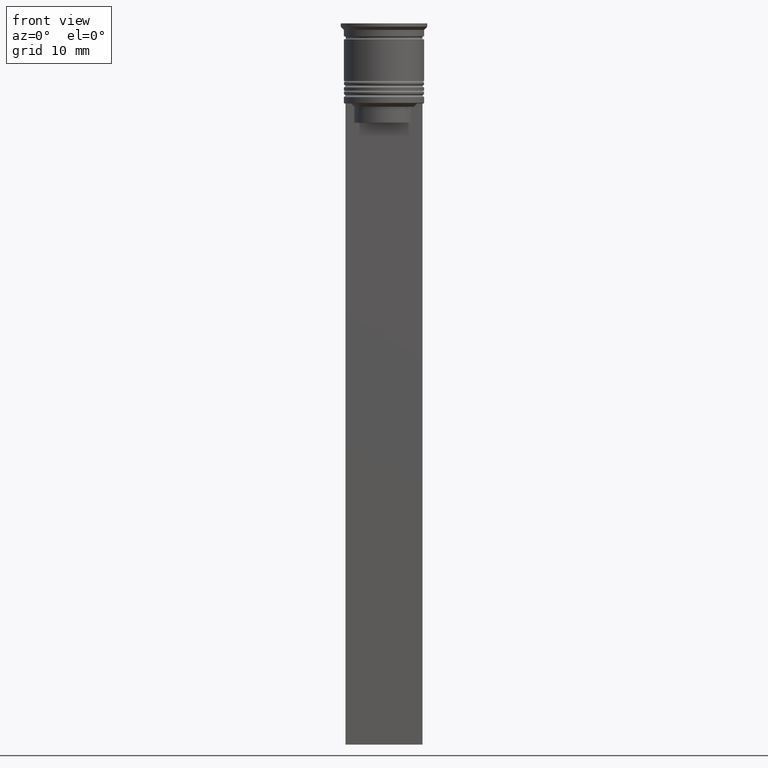
[diagram: clean part render]
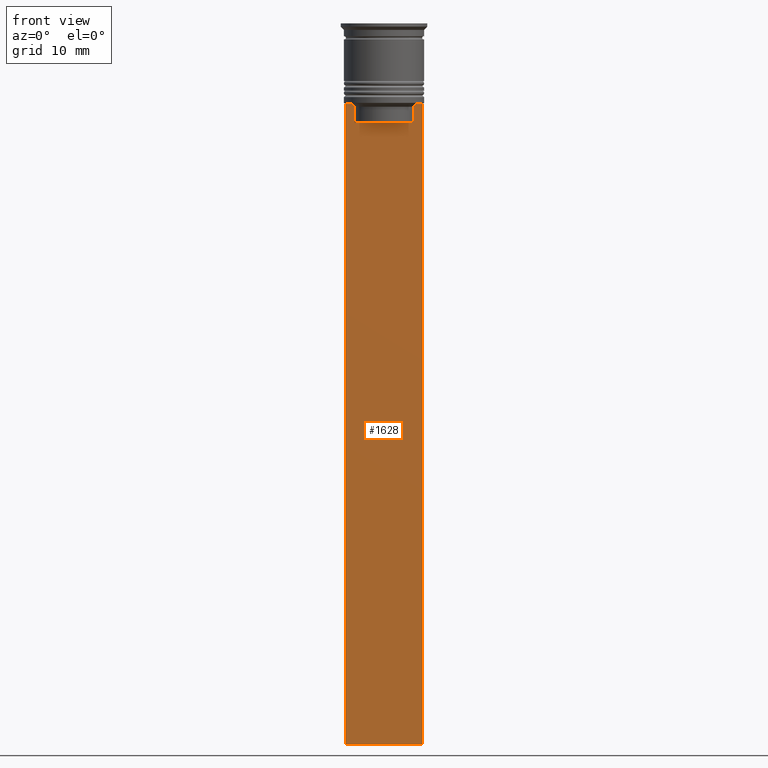
[diagram: same view with one face highlighted and labeled with its STEP entity id]
A machine part, front view. The second image highlights one B-rep face of the part: STEP entity #1628.
In plain terms, the highlighted planar face has unit normal (0, -1, -0).
Its self-contained STEP definition (entity closure, byte-faithful):
#67 = DIRECTION ( 'NONE',  ( 0.000000000000000000, -1.000000000000000000, -0.000000000000000000 ) ) ;
#126 = DIRECTION ( 'NONE',  ( 0.000000000000000000, 0.000000000000000000, -1.000000000000000000 ) ) ;
#132 = DIRECTION ( 'NONE',  ( 0.000000000000000000, 0.000000000000000000, -1.000000000000000000 ) ) ;
#142 = ORIENTED_EDGE ( 'NONE', *, *, #1705, .F. ) ;
#158 = CARTESIAN_POINT ( 'NONE',  ( 6.000000000000016875, -0.5000000000000017764, -0.4584054212077061097 ) ) ;
#173 = VERTEX_POINT ( 'NONE', #1009 ) ;
#185 = EDGE_CURVE ( 'NONE', #913, #887, #1405, .T. ) ;
#283 = DIRECTION ( 'NONE',  ( 1.000000000000000000, 0.000000000000000000, 0.000000000000000000 ) ) ;
#311 = CARTESIAN_POINT ( 'NONE',  ( -4.958169823806760412, -0.5000000000000017764, -12.66670956677067927 ) ) ;
#324 = CARTESIAN_POINT ( 'NONE',  ( -4.790630915080664742, -0.5000000000000017764, -12.83338087185995491 ) ) ;
#331 = CARTESIAN_POINT ( 'NONE',  ( 6.000000000000016875, -0.5000000000000017764, -12.50000000000000000 ) ) ;
#339 = DIRECTION ( 'NONE',  ( -1.000000000000000000, 0.000000000000000000, 0.000000000000000000 ) ) ;
#342 = LINE ( 'NONE', #856, #1348 ) ;
#343 = VECTOR ( 'NONE', #1863, 1000.000000000000000 ) ;
#360 = B_SPLINE_CURVE_WITH_KNOTS ( 'NONE', 3,
 ( #2165, #926, #1823, #1674 ),
 .UNSPECIFIED., .F., .F.,
 ( 4, 4 ),
 ( 0.02203698174624552780, 0.02275222543365896383 ),
 .UNSPECIFIED. ) ;
#371 = CARTESIAN_POINT ( 'NONE',  ( 4.623040125285526436, -0.5000000000000017764, -13.00000000000000178 ) ) ;
#375 = CARTESIAN_POINT ( 'NONE',  ( -5.125670687822231564, -0.5000000000000017764, -12.50000000000000000 ) ) ;
#400 = VECTOR ( 'NONE', #1197, 1000.000000000000000 ) ;
#408 = LINE ( 'NONE', #933, #1787 ) ;
#458 = CARTESIAN_POINT ( 'NONE',  ( 0.000000000000000000, -0.5000000000000022204, -15.50000000000000000 ) ) ;
#462 = CARTESIAN_POINT ( 'NONE',  ( -4.623040125285526436, -0.5000000000000017764, -13.00000000000000178 ) ) ;
#475 = VERTEX_POINT ( 'NONE', #2105 ) ;
#487 = EDGE_CURVE ( 'NONE', #689, #2078, #342, .T. ) ;
#491 = VECTOR ( 'NONE', #339, 1000.000000000000000 ) ;
#534 = EDGE_CURVE ( 'NONE', #2275, #1392, #885, .T. ) ;
#549 = ORIENTED_EDGE ( 'NONE', *, *, #1283, .F. ) ;
#616 = DIRECTION ( 'NONE',  ( 0.000000000000000000, 0.000000000000000000, -1.000000000000000000 ) ) ;
#634 = EDGE_CURVE ( 'NONE', #689, #913, #408, .T. ) ;
#651 = VERTEX_POINT ( 'NONE', #748 ) ;
#658 = VERTEX_POINT ( 'NONE', #1131 ) ;
#659 = LINE ( 'NONE', #331, #1460 ) ;
#689 = VERTEX_POINT ( 'NONE', #2162 ) ;
#720 = VECTOR ( 'NONE', #1213, 1000.000000000000000 ) ;
#748 = CARTESIAN_POINT ( 'NONE',  ( 6.000000000000016875, -0.5000000000000017764, -112.5000000000000000 ) ) ;
#778 = ORIENTED_EDGE ( 'NONE', *, *, #487, .T. ) ;
#856 = CARTESIAN_POINT ( 'NONE',  ( -5.999999999999983125, -0.5000000000000017764, -0.4584054212077061097 ) ) ;
#860 = CARTESIAN_POINT ( 'NONE',  ( 4.623040125285526436, -0.5000000000000022204, -15.50000000000000000 ) ) ;
#885 = LINE ( 'NONE', #1404, #720 ) ;
#887 = VERTEX_POINT ( 'NONE', #462 ) ;
#913 = VERTEX_POINT ( 'NONE', #375 ) ;
#920 = VECTOR ( 'NONE', #132, 1000.000000000000000 ) ;
#924 = ORIENTED_EDGE ( 'NONE', *, *, #185, .F. ) ;
#926 = CARTESIAN_POINT ( 'NONE',  ( 4.790630799407577634, -0.5000000000000017764, -12.83338098686238915 ) ) ;
#933 = CARTESIAN_POINT ( 'NONE',  ( 6.000000000000016875, -0.5000000000000017764, -12.50000000000000000 ) ) ;
#977 = ORIENTED_EDGE ( 'NONE', *, *, #1192, .F. ) ;
#982 = EDGE_CURVE ( 'NONE', #1392, #658, #360, .T. ) ;
#1009 = CARTESIAN_POINT ( 'NONE',  ( 6.000000000000016875, -0.5000000000000017764, -12.50000000000000000 ) ) ;
#1131 = CARTESIAN_POINT ( 'NONE',  ( 5.125670687822231564, -0.5000000000000017764, -12.50000000000000000 ) ) ;
#1138 = ORIENTED_EDGE ( 'NONE', *, *, #534, .F. ) ;
#1141 = CARTESIAN_POINT ( 'NONE',  ( -5.999999999999983125, -0.5000000000000017764, -112.5000000000000000 ) ) ;
#1192 = EDGE_CURVE ( 'NONE', #651, #2078, #1807, .T. ) ;
#1197 = DIRECTION ( 'NONE',  ( 1.000000000000000000, 0.000000000000000000, 0.000000000000000000 ) ) ;
#1207 = CARTESIAN_POINT ( 'NONE',  ( -4.623040125285526436, -0.5000000000000017764, 0.000000000000000000 ) ) ;
#1213 = DIRECTION ( 'NONE',  ( -0.000000000000000000, -0.000000000000000000, 1.000000000000000000 ) ) ;
#1283 = EDGE_CURVE ( 'NONE', #173, #651, #1794, .T. ) ;
#1348 = VECTOR ( 'NONE', #126, 1000.000000000000000 ) ;
#1392 = VERTEX_POINT ( 'NONE', #371 ) ;
#1395 = ORIENTED_EDGE ( 'NONE', *, *, #634, .F. ) ;
#1404 = CARTESIAN_POINT ( 'NONE',  ( 4.623040125285526436, -0.5000000000000017764, 0.000000000000000000 ) ) ;
#1405 = B_SPLINE_CURVE_WITH_KNOTS ( 'NONE', 3,
 ( #1774, #311, #324, #1956 ),
 .UNSPECIFIED., .F., .F.,
 ( 4, 4 ),
 ( 0.008759809102772709091, 0.009468778395565353653 ),
 .UNSPECIFIED. ) ;
#1460 = VECTOR ( 'NONE', #283, 1000.000000000000000 ) ;
#1548 = EDGE_LOOP ( 'NONE', ( #924, #1395, #778, #977, #549, #1598, #1850, #1138, #142, #1550 ) ) ;
#1550 = ORIENTED_EDGE ( 'NONE', *, *, #2198, .F. ) ;
#1552 = LINE ( 'NONE', #1207, #920 ) ;
#1591 = LINE ( 'NONE', #458, #400 ) ;
#1598 = ORIENTED_EDGE ( 'NONE', *, *, #2329, .F. ) ;
#1628 = ADVANCED_FACE ( 'NONE', ( #1889 ), #1703, .T. ) ;
#1674 = CARTESIAN_POINT ( 'NONE',  ( 5.125670687822231564, -0.5000000000000017764, -12.50000000000000000 ) ) ;
#1679 = CARTESIAN_POINT ( 'NONE',  ( 6.000000000000016875, -0.5000000000000017764, -0.4584054212077061097 ) ) ;
#1703 = PLANE ( 'NONE',  #1995 ) ;
#1705 = EDGE_CURVE ( 'NONE', #475, #2275, #1591, .T. ) ;
#1774 = CARTESIAN_POINT ( 'NONE',  ( -5.125670687822231564, -0.5000000000000017764, -12.50000000000000000 ) ) ;
#1787 = VECTOR ( 'NONE', #1843, 1000.000000000000000 ) ;
#1794 = LINE ( 'NONE', #158, #343 ) ;
#1807 = LINE ( 'NONE', #2138, #491 ) ;
#1823 = CARTESIAN_POINT ( 'NONE',  ( 4.958169719475987947, -0.5000000000000017764, -12.66670967060858111 ) ) ;
#1843 = DIRECTION ( 'NONE',  ( 1.000000000000000000, 0.000000000000000000, 0.000000000000000000 ) ) ;
#1850 = ORIENTED_EDGE ( 'NONE', *, *, #982, .F. ) ;
#1863 = DIRECTION ( 'NONE',  ( 0.000000000000000000, 0.000000000000000000, -1.000000000000000000 ) ) ;
#1889 = FACE_OUTER_BOUND ( 'NONE', #1548, .T. ) ;
#1956 = CARTESIAN_POINT ( 'NONE',  ( -4.623040125285526436, -0.5000000000000017764, -13.00000000000000178 ) ) ;
#1995 = AXIS2_PLACEMENT_3D ( 'NONE', #1679, #67, #616 ) ;
#2078 = VERTEX_POINT ( 'NONE', #1141 ) ;
#2105 = CARTESIAN_POINT ( 'NONE',  ( -4.623040125285526436, -0.5000000000000022204, -15.50000000000000000 ) ) ;
#2138 = CARTESIAN_POINT ( 'NONE',  ( 6.000000000000016875, -0.5000000000000017764, -112.5000000000000000 ) ) ;
#2162 = CARTESIAN_POINT ( 'NONE',  ( -5.999999999999983125, -0.5000000000000017764, -12.50000000000000000 ) ) ;
#2165 = CARTESIAN_POINT ( 'NONE',  ( 4.623040125285526436, -0.5000000000000017764, -13.00000000000000178 ) ) ;
#2198 = EDGE_CURVE ( 'NONE', #887, #475, #1552, .T. ) ;
#2275 = VERTEX_POINT ( 'NONE', #860 ) ;
#2329 = EDGE_CURVE ( 'NONE', #658, #173, #659, .T. ) ;